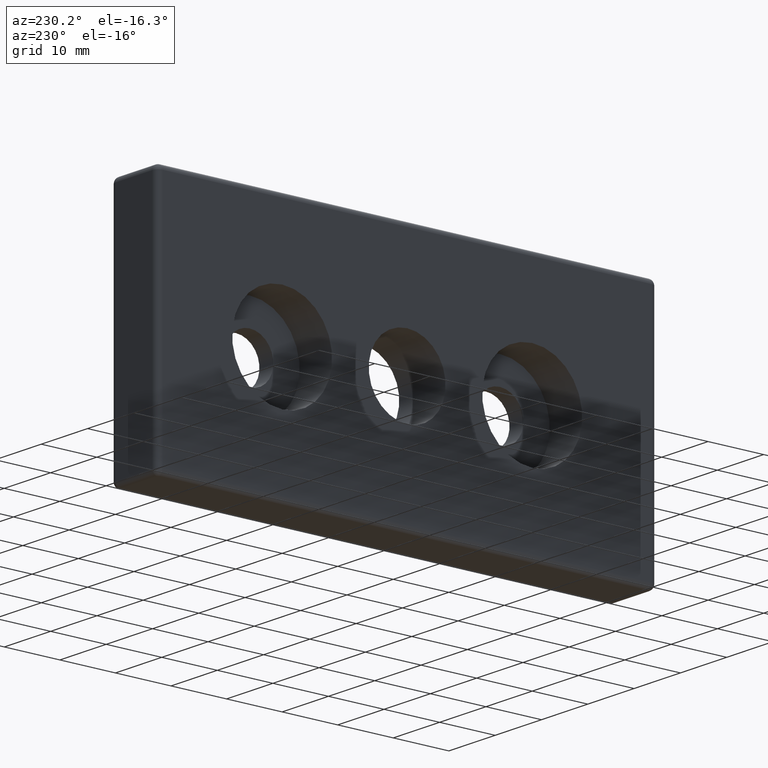
[diagram: clean part render]
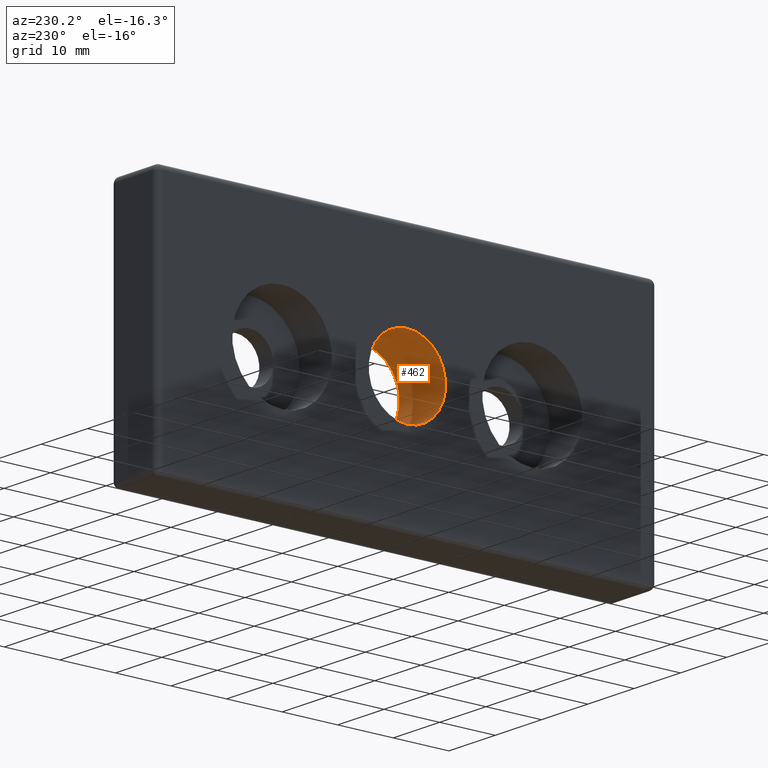
[diagram: same view with one face highlighted and labeled with its STEP entity id]
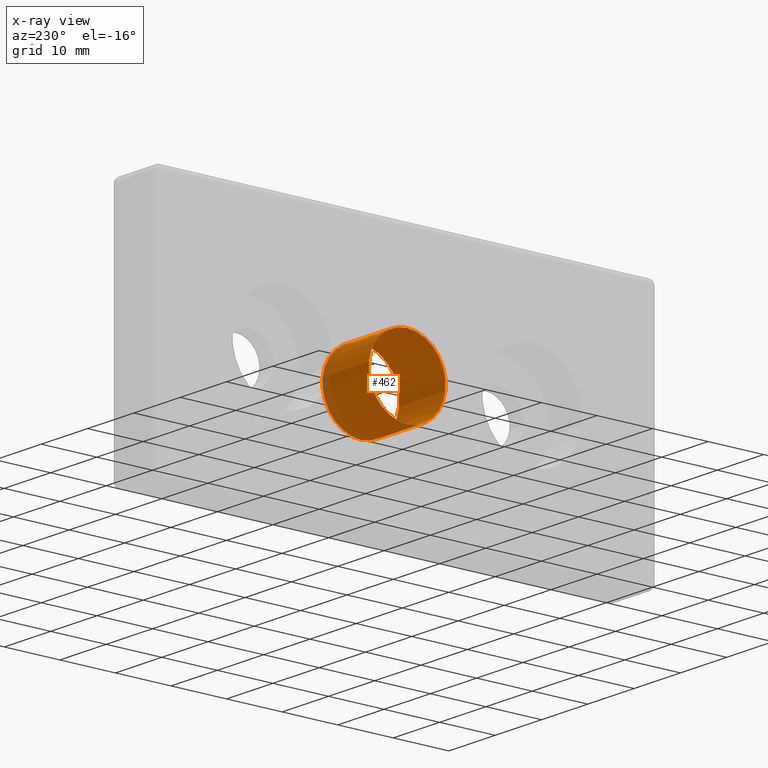
[diagram: x-ray of the same camera — body ghosted, the highlighted face saturated]
A machine part, auxiliary view. The second image highlights one B-rep face of the part: STEP entity #462.
The next image is the same camera in x-ray: the body ghosted, the highlighted face saturated — about 10% of this face is hidden behind the body in this view.
In plain terms, the highlighted cylindrical surface (bore or boss wall) has radius 6.9175 mm, axis along (-1, 0, 0).
Its self-contained STEP definition (entity closure, byte-faithful):
#27=FACE_BOUND('',#179,.T.);
#100=CYLINDRICAL_SURFACE('',#531,6.9175);
#133=FACE_OUTER_BOUND('',#178,.T.);
#178=EDGE_LOOP('',(#420));
#179=EDGE_LOOP('',(#421));
#204=CIRCLE('',#512,6.9175);
#207=CIRCLE('',#518,6.9175);
#238=VERTEX_POINT('',#788);
#241=VERTEX_POINT('',#797);
#296=EDGE_CURVE('',#238,#238,#204,.T.);
#299=EDGE_CURVE('',#241,#241,#207,.T.);
#420=ORIENTED_EDGE('',*,*,#299,.F.);
#421=ORIENTED_EDGE('',*,*,#296,.F.);
#462=ADVANCED_FACE('',(#133,#27),#100,.F.);
#512=AXIS2_PLACEMENT_3D('',#789,#652,#653);
#518=AXIS2_PLACEMENT_3D('',#798,#664,#665);
#531=AXIS2_PLACEMENT_3D('',#817,#690,#691);
#652=DIRECTION('center_axis',(1.,0.,0.));
#653=DIRECTION('ref_axis',(0.,0.,1.));
#664=DIRECTION('center_axis',(-1.,0.,0.));
#665=DIRECTION('ref_axis',(0.,0.,1.));
#690=DIRECTION('center_axis',(-1.,0.,0.));
#691=DIRECTION('ref_axis',(0.,0.,1.));
#788=CARTESIAN_POINT('',(-5.,0.,6.9175));
#789=CARTESIAN_POINT('Origin',(-5.,0.,0.));
#797=CARTESIAN_POINT('',(5.,-8.47149423310182E-16,-6.9175));
#798=CARTESIAN_POINT('Origin',(5.,0.,0.));
#817=CARTESIAN_POINT('Origin',(96.1187420807834,0.,0.));